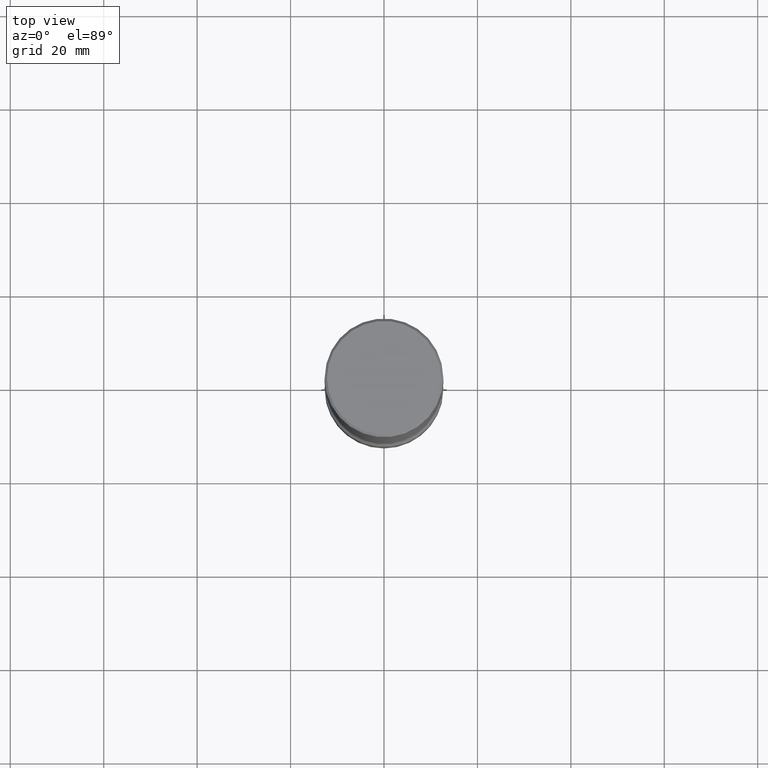
[diagram: clean part render]
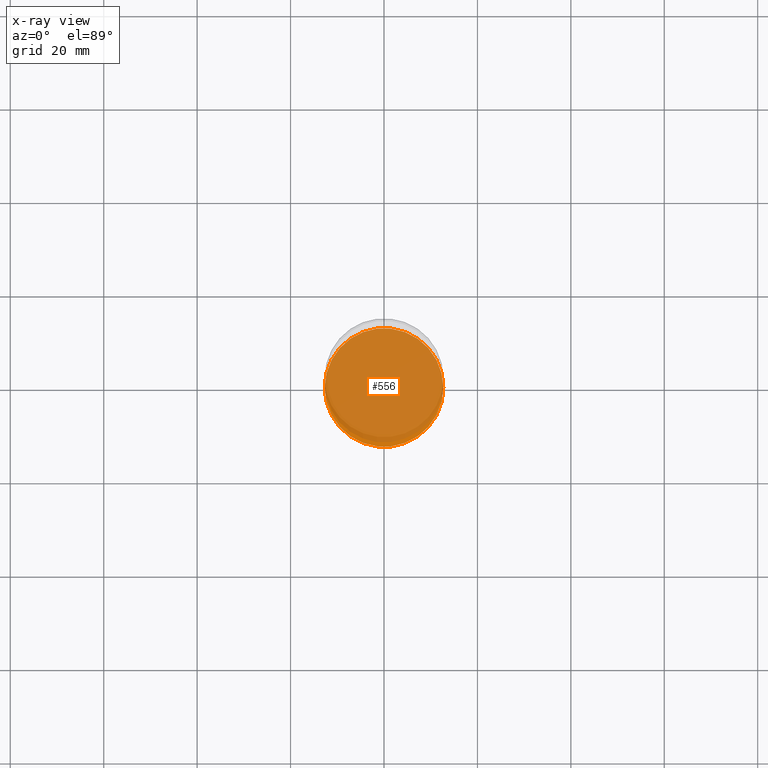
[diagram: x-ray — body ghosted, one internal face saturated and labeled with its STEP entity id]
A machine part, top view, then the same camera in x-ray: the body is ghosted and one INTERNAL B-rep face — a face not visible from any outside direction — is saturated and labeled: STEP entity #556.
In plain terms, the highlighted planar face has unit normal (0, -0, -1).
Its self-contained STEP definition (entity closure, byte-faithful):
#18 = CARTESIAN_POINT ( 'NONE',  ( 0.4994999999999991114, -2.007302563652160412E-14, -4.750000000000000000 ) ) ;
#25 = DIRECTION ( 'NONE',  ( 2.445468806185136597E-29, -3.491481338843145583E-15, -1.000000000000000000 ) ) ;
#51 = AXIS2_PLACEMENT_3D ( 'NONE', #156, #25, #202 ) ;
#55 = DIRECTION ( 'NONE',  ( 2.445468806185136597E-29, -3.491481338843145583E-15, -1.000000000000000000 ) ) ;
#57 = CARTESIAN_POINT ( 'NONE',  ( 1.161597682937940108E-28, -1.658453635950494339E-14, -4.750000000000000000 ) ) ;
#95 = EDGE_CURVE ( 'NONE', #99, #500, #146, .T. ) ;
#99 = VERTEX_POINT ( 'NONE', #242 ) ;
#146 = CIRCLE ( 'NONE', #51, 0.4994999999999991114 ) ;
#156 = CARTESIAN_POINT ( 'NONE',  ( 1.161597682937940108E-28, -1.658453635950494339E-14, -4.750000000000000000 ) ) ;
#162 = DIRECTION ( 'NONE',  ( 2.438088387897960049E-29, -3.491481338843145188E-15, -1.000000000000000000 ) ) ;
#202 = DIRECTION ( 'NONE',  ( -1.000000000000000000, 6.982962677686268288E-15, 0.000000000000000000 ) ) ;
#208 = EDGE_CURVE ( 'NONE', #500, #99, #353, .T. ) ;
#224 = AXIS2_PLACEMENT_3D ( 'NONE', #57, #55, #326 ) ;
#242 = CARTESIAN_POINT ( 'NONE',  ( -0.4994999999999991114, -1.303385961856767947E-14, -4.750000000000000000 ) ) ;
#256 = DIRECTION ( 'NONE',  ( -1.000000000000000000, 6.982962677686265922E-15, -4.876176775795935793E-29 ) ) ;
#326 = DIRECTION ( 'NONE',  ( -1.000000000000000000, 6.982962677686268288E-15, 0.000000000000000000 ) ) ;
#353 = CIRCLE ( 'NONE', #224, 0.4994999999999991114 ) ;
#393 = FACE_OUTER_BOUND ( 'NONE', #492, .T. ) ;
#437 = AXIS2_PLACEMENT_3D ( 'NONE', #557, #162, #256 ) ;
#492 = EDGE_LOOP ( 'NONE', ( #548, #501 ) ) ;
#500 = VERTEX_POINT ( 'NONE', #18 ) ;
#501 = ORIENTED_EDGE ( 'NONE', *, *, #95, .T. ) ;
#544 = PLANE ( 'NONE',  #437 ) ;
#548 = ORIENTED_EDGE ( 'NONE', *, *, #208, .T. ) ;
#556 = ADVANCED_FACE ( 'NONE', ( #393 ), #544, .T. ) ;
#557 = CARTESIAN_POINT ( 'NONE',  ( 3.487989857504400000E-15, 0.4994999999999825691, -4.750000000000001776 ) ) ;